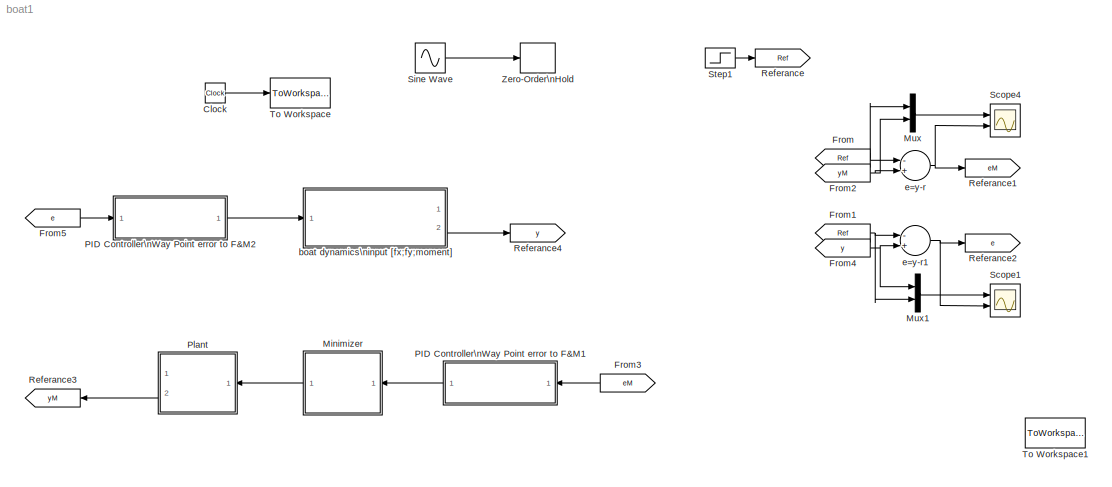
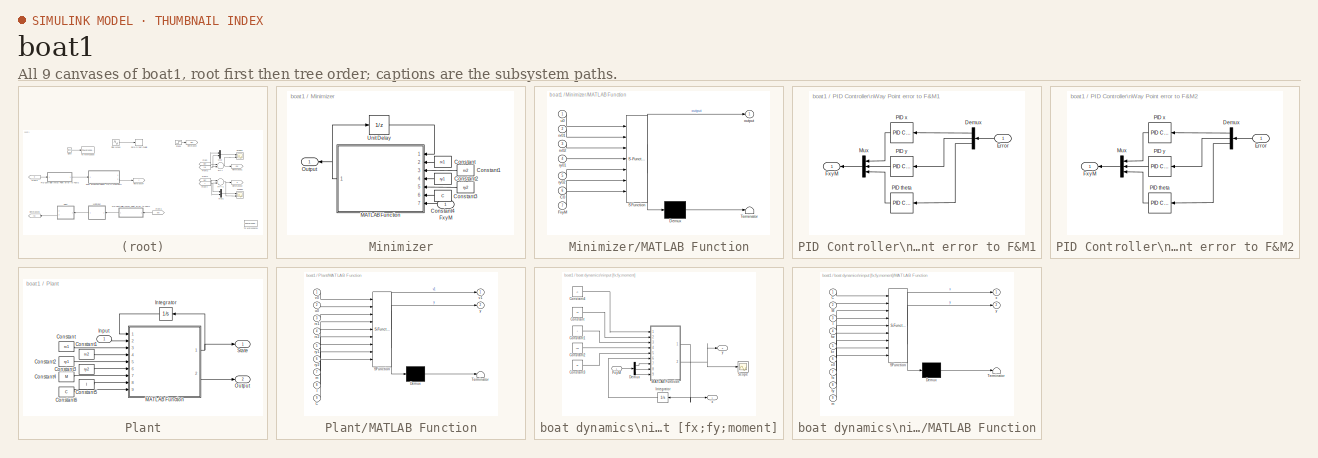
[diagram: thumbnail index - all 9 canvases of the model, root first then tree order]
MODEL boat1
KIND model
BLOCK [Clock] Clock
  SID = 9
BLOCK [From] From
  GotoTag = Ref
  SID = 150
BLOCK [From] From1
  GotoTag = Ref
  SID = 153
BLOCK [From] From2
  GotoTag = yM
  SID = 157
BLOCK [From] From3
  GotoTag = eM
  SID = 158
BLOCK [From] From4
  GotoTag = y
  SID = 161
BLOCK [From] From5
  GotoTag = e
  SID = 179
BLOCK [SubSystem] Minimizer
  FunctionWithSeparateData = off
  MaskCallbackString = ||||
  MaskEnableString = on,on,on,on,on
  MaskHideContents = off
  MaskIconFrame = on
  MaskIconOpaque = on
  MaskIconRotate = none
  MaskIconUnits = autoscale
  MaskPortRotate = default
  MaskPromptString = rx1|rx2|ry1|ry2|Performance Gain
  MaskStyleString = edit,edit,edit,edit,edit
  MaskToolTipString = on,on,on,on,on
  MaskTunableValueString = on,on,on,on,on
  MaskValueString = rx1|rx2|ry1|ry2|K
  MaskVariables = rx1=@1;rx2=@2;ry1=@3;ry2=@4;C=@5;
  MaskVisibilityString = on,on,on,on,on
  MinAlgLoopOccurrences = off
  Opaque = off
  Ports = [1, 1]
  PropExecContextOutsideSubsystem = off
  RTWSystemCode = Auto
  RequestExecContextInheritance = off
  SID = 137
BLOCK [Constant] Minimizer/Constant
  SID = 139
  Value = rx1
BLOCK [Constant] Minimizer/Constant1
  SID = 140
  Value = rx2
BLOCK [Constant] Minimizer/Constant2
  SID = 141
  Value = ry1
BLOCK [Constant] Minimizer/Constant3
  SID = 142
  Value = ry2
BLOCK [Constant] Minimizer/Constant4
  SID = 143
  Value = C
BLOCK [Inport] Minimizer/FxyM
  IconDisplay = Port number
  SID = 138
BLOCK [SubSystem] Minimizer/MATLAB Function
  ErrorFcn = Stateflow.Translate.translate
  FunctionWithSeparateData = off
  MaskDescription = Embedded MATLAB block
  MaskDisplay = bgColor = Simulink.Root.ColorString2Rgb(get_param(gcbh, 'BackgroundColor')); image(imread('private/eml_membrane_16.png','png','BackgroundColor',bgColor(1:3)),'center'); disp([10 10 'Minimizer']);
  MaskHideContents = off
  MaskIconFrame = on
  MaskIconOpaque = off
  MaskIconRotate = none
  MaskIconUnits = normalized
  MaskPortRotate = default
  MaskSelfModifiable = on
  MaskType = Stateflow
  MinAlgLoopOccurrences = off
  Opaque = off
  PermitHierarchicalResolution = ExplicitOnly
  Ports = [7, 1]
  PropExecContextOutsideSubsystem = off
  RTWSystemCode = Auto
  RequestExecContextInheritance = off
  SFBlockType = MATLAB Function
  SID = 144
  TreatAsAtomicUnit = on
BLOCK [Demux] Minimizer/MATLAB Function/ Demux 
  Outputs = 1
  Ports = [1, 1]
  SID = 144::20
BLOCK [S-Function] Minimizer/MATLAB Function/ SFunction 
  EnableBusSupport = on
  FunctionName = sf_sfun
  PortCounts = [7 2]
  Ports = [7, 2]
  SID = 144::19
  Tag = Stateflow S-Function boat1 3
BLOCK [Terminator] Minimizer/MATLAB Function/ Terminator 
  SID = 144::22
BLOCK [Inport] Minimizer/MATLAB Function/C0
  IconDisplay = Port number
  Port = 6
  SID = 144::27
BLOCK [Inport] Minimizer/MATLAB Function/FxyM
  IconDisplay = Port number
  Port = 7
  SID = 144::28
BLOCK [Outport] Minimizer/MATLAB Function/output
  IconDisplay = Port number
  SID = 144::5
BLOCK [Inport] Minimizer/MATLAB Function/rx01
  IconDisplay = Port number
  Port = 2
  SID = 144::23
BLOCK [Inport] Minimizer/MATLAB Function/rx02
  IconDisplay = Port number
  Port = 3
  SID = 144::24
BLOCK [Inport] Minimizer/MATLAB Function/ry01
  IconDisplay = Port number
  Port = 4
  SID = 144::25
BLOCK [Inport] Minimizer/MATLAB Function/ry02
  IconDisplay = Port number
  Port = 5
  SID = 144::26
BLOCK [Inport] Minimizer/MATLAB Function/u0
  IconDisplay = Port number
  SID = 144::1
BLOCK [Outport] Minimizer/Output
  IconDisplay = Port number
  SID = 146
BLOCK [UnitDelay] Minimizer/Unit Delay
  InputProcessing = Elements as channels (sample based)
  SID = 145
  SampleTime = -1
  X0 = [0 0 0 0]
BLOCK [Mux] Mux
  DisplayOption = bar
  Inputs = 2
  Ports = [2, 1]
  SID = 162
BLOCK [Mux] Mux1
  DisplayOption = bar
  Inputs = 2
  Ports = [2, 1]
  SID = 164
BLOCK [SubSystem] PID Controller\nWay Point error to F&M1
  FunctionWithSeparateData = off
  MaskHideContents = off
  MinAlgLoopOccurrences = off
  Opaque = off
  Ports = [1, 1]
  PropExecContextOutsideSubsystem = off
  RTWSystemCode = Auto
  RequestExecContextInheritance = off
  SID = 129
BLOCK [Demux] PID Controller\nWay Point error to F&M1/Demux
  DisplayOption = bar
  Outputs = 3
  Ports = [1, 3]
  SID = 131
BLOCK [Inport] PID Controller\nWay Point error to F&M1/Error
  IconDisplay = Port number
  SID = 130
BLOCK [Outport] PID Controller\nWay Point error to F&M1/FxyM
  IconDisplay = Port number
  SID = 136
BLOCK [Mux] PID Controller\nWay Point error to F&M1/Mux
  DisplayOption = bar
  Inputs = 3
  Ports = [3, 1]
  SID = 132
BLOCK [Reference] PID Controller\nWay Point error to F&M1/PID theta  REF=simulink/Continuous/PID Controller
  AntiWindupMode = none
  Controller = PID
  D = 5.47077070641916
  DOutDataTypeStr = Inherit: Inherit via internal rule
  DOutMax = []
  DOutMin = []
  DParamDataTypeStr = Inherit: Inherit via internal rule
  DParamMax = []
  DParamMin = []
  ExternalReset = none
  FilterContinuousStateAttributes = ''
  FilterMethod = Forward Euler
  FilterOutDataTypeStr = Inherit: Inherit via internal rule
  FilterOutMax = []
  FilterOutMin = []
  FilterRTWStateStorageClass = Auto
  FilterStateMustResolveToSignalObject = off
  Form = Parallel
  I = -178.448916818041
  IOutDataTypeStr = Inherit: Inherit via internal rule
  IOutMax = []
  IOutMin = []
  IParamDataTypeStr = Inherit: Inherit via internal rule
  IParamMax = []
  IParamMin = []
  IgnoreLimit = off
  InitialConditionForFilter = 0
  InitialConditionForIntegrator = 0
  InitialConditionSource = internal
  IntegratorContinuousStateAttributes = ''
  IntegratorMethod = Forward Euler
  IntegratorOutDataTypeStr = Inherit: Inherit via internal rule
  IntegratorOutMax = []
  IntegratorOutMin = []
  IntegratorRTWStateStorageClass = Auto
  IntegratorStateMustResolveToSignalObject = off
  Kb = 1
  KbOutDataTypeStr = Inherit: Inherit via internal rule
  KbOutMax = []
  KbOutMin = []
  KbParamDataTypeStr = Inherit: Inherit via internal rule
  KbParamMax = []
  KbParamMin = []
  Kt = 1
  KtOutDataTypeStr = Inherit: Inherit via internal rule
  KtOutMax = []
  KtOutMin = []
  KtParamDataTypeStr = Inherit: Inherit via internal rule
  KtParamMax = []
  KtParamMin = []
  LimitOutput = off
  LinearizeAsGain = off
  LockScale = off
  LowerSaturationLimit = -inf
  N = 9.64052643054454
  NOutDataTypeStr = Inherit: Inherit via internal rule
  NOutMax = []
  NOutMin = []
  NParamDataTypeStr = Inherit: Inherit via internal rule
  NParamMax = []
  NParamMin = []
  P = -52.7411095906827
  POutDataTypeStr = Inherit: Inherit via internal rule
  POutMax = []
  POutMin = []
  PParamDataTypeStr = Inherit: Inherit via internal rule
  PParamMax = []
  PParamMin = []
  Ports = [1, 1]
  RndMeth = Floor
  SID = 133
  SampleTime = 1
  SaturateOnIntegerOverflow = off
  SaturationOutDataTypeStr = Inherit: Same as input
  SaturationOutMax = []
  SaturationOutMin = []
  SourceBlock = simulink/Continuous/PID Controller
  SourceType = PID 1dof
  SumAccumDataTypeStr = Inherit: Inherit via internal rule
  SumDAccumDataTypeStr = Inherit: Inherit via internal rule
  SumDOutDataTypeStr = Inherit: Inherit via internal rule
  SumDOutMax = []
  SumDOutMin = []
  SumI1AccumDataTypeStr = Inherit: Inherit via internal rule
  SumI1OutDataTypeStr = Inherit: Inherit via internal rule
  SumI1OutMax = []
  SumI1OutMin = []
  SumI2AccumDataTypeStr = Inherit: Inherit via internal rule
  SumI2OutDataTypeStr = Inherit: Inherit via internal rule
  SumI2OutMax = []
  SumI2OutMin = []
  SumI3AccumDataTypeStr = Inherit: Inherit via internal rule
  SumI3OutDataTypeStr = Inherit: Inherit via internal rule
  SumI3OutMax = []
  SumI3OutMin = []
  SumOutDataTypeStr = Inherit: Inherit via internal rule
  SumOutMax = []
  SumOutMin = []
  TimeDomain = Continuous-time
  TrackingMode = off
  UpperSaturationLimit = inf
  ZeroCross = on
BLOCK [Reference] PID Controller\nWay Point error to F&M1/PID x  REF=simulink/Continuous/PID Controller
  AntiWindupMode = none
  Controller = PID
  D = 2.73538535320958
  DOutDataTypeStr = Inherit: Inherit via internal rule
  DOutMax = []
  DOutMin = []
  DParamDataTypeStr = Inherit: Inherit via internal rule
  DParamMax = []
  DParamMin = []
  ExternalReset = none
  FilterContinuousStateAttributes = ''
  FilterMethod = Forward Euler
  FilterOutDataTypeStr = Inherit: Inherit via internal rule
  FilterOutMax = []
  FilterOutMin = []
  FilterRTWStateStorageClass = Auto
  FilterStateMustResolveToSignalObject = off
  Form = Parallel
  I = -356.897833636081
  IOutDataTypeStr = Inherit: Inherit via internal rule
  IOutMax = []
  IOutMin = []
  IParamDataTypeStr = Inherit: Inherit via internal rule
  IParamMax = []
  IParamMin = []
  IgnoreLimit = off
  InitialConditionForFilter = 0
  InitialConditionForIntegrator = 0
  InitialConditionSource = internal
  IntegratorContinuousStateAttributes = ''
  IntegratorMethod = Forward Euler
  IntegratorOutDataTypeStr = Inherit: Inherit via internal rule
  IntegratorOutMax = []
  IntegratorOutMin = []
  IntegratorRTWStateStorageClass = Auto
  IntegratorStateMustResolveToSignalObject = off
  Kb = 1
  KbOutDataTypeStr = Inherit: Inherit via internal rule
  KbOutMax = []
  KbOutMin = []
  KbParamDataTypeStr = Inherit: Inherit via internal rule
  KbParamMax = []
  KbParamMin = []
  Kt = 1
  KtOutDataTypeStr = Inherit: Inherit via internal rule
  KtOutMax = []
  KtOutMin = []
  KtParamDataTypeStr = Inherit: Inherit via internal rule
  KtParamMax = []
  KtParamMin = []
  LimitOutput = off
  LinearizeAsGain = off
  LockScale = off
  LowerSaturationLimit = -inf
  N = 19.2810528610891
  NOutDataTypeStr = Inherit: Inherit via internal rule
  NOutMax = []
  NOutMin = []
  NParamDataTypeStr = Inherit: Inherit via internal rule
  NParamMax = []
  NParamMin = []
  P = -52.7411095906827
  POutDataTypeStr = Inherit: Inherit via internal rule
  POutMax = []
  POutMin = []
  PParamDataTypeStr = Inherit: Inherit via internal rule
  PParamMax = []
  PParamMin = []
  Ports = [1, 1]
  RndMeth = Floor
  SID = 134
  SampleTime = 1
  SaturateOnIntegerOverflow = off
  SaturationOutDataTypeStr = Inherit: Same as input
  SaturationOutMax = []
  SaturationOutMin = []
  SourceBlock = simulink/Continuous/PID Controller
  SourceType = PID 1dof
  SumAccumDataTypeStr = Inherit: Inherit via internal rule
  SumDAccumDataTypeStr = Inherit: Inherit via internal rule
  SumDOutDataTypeStr = Inherit: Inherit via internal rule
  SumDOutMax = []
  SumDOutMin = []
  SumI1AccumDataTypeStr = Inherit: Inherit via internal rule
  SumI1OutDataTypeStr = Inherit: Inherit via internal rule
  SumI1OutMax = []
  SumI1OutMin = []
  SumI2AccumDataTypeStr = Inherit: Inherit via internal rule
  SumI2OutDataTypeStr = Inherit: Inherit via internal rule
  SumI2OutMax = []
  SumI2OutMin = []
  SumI3AccumDataTypeStr = Inherit: Inherit via internal rule
  SumI3OutDataTypeStr = Inherit: Inherit via internal rule
  SumI3OutMax = []
  SumI3OutMin = []
  SumOutDataTypeStr = Inherit: Inherit via internal rule
  SumOutMax = []
  SumOutMin = []
  TimeDomain = Continuous-time
  TrackingMode = off
  UpperSaturationLimit = inf
  ZeroCross = on
BLOCK [Reference] PID Controller\nWay Point error to F&M1/PID y  REF=simulink/Continuous/PID Controller
  AntiWindupMode = none
  Controller = PID
  D = 2.73538535320958
  DOutDataTypeStr = Inherit: Inherit via internal rule
  DOutMax = []
  DOutMin = []
  DParamDataTypeStr = Inherit: Inherit via internal rule
  DParamMax = []
  DParamMin = []
  ExternalReset = none
  FilterContinuousStateAttributes = ''
  FilterMethod = Forward Euler
  FilterOutDataTypeStr = Inherit: Inherit via internal rule
  FilterOutMax = []
  FilterOutMin = []
  FilterRTWStateStorageClass = Auto
  FilterStateMustResolveToSignalObject = off
  Form = Parallel
  I = -356.897833636081
  IOutDataTypeStr = Inherit: Inherit via internal rule
  IOutMax = []
  IOutMin = []
  IParamDataTypeStr = Inherit: Inherit via internal rule
  IParamMax = []
  IParamMin = []
  IgnoreLimit = off
  InitialConditionForFilter = 0
  InitialConditionForIntegrator = 0
  InitialConditionSource = internal
  IntegratorContinuousStateAttributes = ''
  IntegratorMethod = Forward Euler
  IntegratorOutDataTypeStr = Inherit: Inherit via internal rule
  IntegratorOutMax = []
  IntegratorOutMin = []
  IntegratorRTWStateStorageClass = Auto
  IntegratorStateMustResolveToSignalObject = off
  Kb = 1
  KbOutDataTypeStr = Inherit: Inherit via internal rule
  KbOutMax = []
  KbOutMin = []
  KbParamDataTypeStr = Inherit: Inherit via internal rule
  KbParamMax = []
  KbParamMin = []
  Kt = 1
  KtOutDataTypeStr = Inherit: Inherit via internal rule
  KtOutMax = []
  KtOutMin = []
  KtParamDataTypeStr = Inherit: Inherit via internal rule
  KtParamMax = []
  KtParamMin = []
  LimitOutput = off
  LinearizeAsGain = off
  LockScale = off
  LowerSaturationLimit = -inf
  N = 19.2810528610891
  NOutDataTypeStr = Inherit: Inherit via internal rule
  NOutMax = []
  NOutMin = []
  NParamDataTypeStr = Inherit: Inherit via internal rule
  NParamMax = []
  NParamMin = []
  P = -52.7411095906827
  POutDataTypeStr = Inherit: Inherit via internal rule
  POutMax = []
  POutMin = []
  PParamDataTypeStr = Inherit: Inherit via internal rule
  PParamMax = []
  PParamMin = []
  Ports = [1, 1]
  RndMeth = Floor
  SID = 135
  SampleTime = 1
  SaturateOnIntegerOverflow = off
  SaturationOutDataTypeStr = Inherit: Same as input
  SaturationOutMax = []
  SaturationOutMin = []
  SourceBlock = simulink/Continuous/PID Controller
  SourceType = PID 1dof
  SumAccumDataTypeStr = Inherit: Inherit via internal rule
  SumDAccumDataTypeStr = Inherit: Inherit via internal rule
  SumDOutDataTypeStr = Inherit: Inherit via internal rule
  SumDOutMax = []
  SumDOutMin = []
  SumI1AccumDataTypeStr = Inherit: Inherit via internal rule
  SumI1OutDataTypeStr = Inherit: Inherit via internal rule
  SumI1OutMax = []
  SumI1OutMin = []
  SumI2AccumDataTypeStr = Inherit: Inherit via internal rule
  SumI2OutDataTypeStr = Inherit: Inherit via internal rule
  SumI2OutMax = []
  SumI2OutMin = []
  SumI3AccumDataTypeStr = Inherit: Inherit via internal rule
  SumI3OutDataTypeStr = Inherit: Inherit via internal rule
  SumI3OutMax = []
  SumI3OutMin = []
  SumOutDataTypeStr = Inherit: Inherit via internal rule
  SumOutMax = []
  SumOutMin = []
  TimeDomain = Continuous-time
  TrackingMode = off
  UpperSaturationLimit = inf
  ZeroCross = on
BLOCK [SubSystem] PID Controller\nWay Point error to F&M2
  FunctionWithSeparateData = off
  MaskHideContents = off
  MinAlgLoopOccurrences = off
  Opaque = off
  Ports = [1, 1]
  PropExecContextOutsideSubsystem = off
  RTWSystemCode = Auto
  RequestExecContextInheritance = off
  SID = 180
BLOCK [Demux] PID Controller\nWay Point error to F&M2/Demux
  DisplayOption = bar
  Outputs = 3
  Ports = [1, 3]
  SID = 182
BLOCK [Inport] PID Controller\nWay Point error to F&M2/Error
  IconDisplay = Port number
  SID = 181
BLOCK [Outport] PID Controller\nWay Point error to F&M2/FxyM
  IconDisplay = Port number
  SID = 187
BLOCK [Mux] PID Controller\nWay Point error to F&M2/Mux
  DisplayOption = bar
  Inputs = 3
  Ports = [3, 1]
  SID = 183
BLOCK [Reference] PID Controller\nWay Point error to F&M2/PID theta  REF=simulink/Continuous/PID Controller
  AntiWindupMode = none
  Controller = PID
  D = 5.47077070641916
  DOutDataTypeStr = Inherit: Inherit via internal rule
  DOutMax = []
  DOutMin = []
  DParamDataTypeStr = Inherit: Inherit via internal rule
  DParamMax = []
  DParamMin = []
  ExternalReset = none
  FilterContinuousStateAttributes = ''
  FilterMethod = Forward Euler
  FilterOutDataTypeStr = Inherit: Inherit via internal rule
  FilterOutMax = []
  FilterOutMin = []
  FilterRTWStateStorageClass = Auto
  FilterStateMustResolveToSignalObject = off
  Form = Parallel
  I = -178.448916818041
  IOutDataTypeStr = Inherit: Inherit via internal rule
  IOutMax = []
  IOutMin = []
  IParamDataTypeStr = Inherit: Inherit via internal rule
  IParamMax = []
  IParamMin = []
  IgnoreLimit = off
  InitialConditionForFilter = 0
  InitialConditionForIntegrator = 0
  InitialConditionSource = internal
  IntegratorContinuousStateAttributes = ''
  IntegratorMethod = Forward Euler
  IntegratorOutDataTypeStr = Inherit: Inherit via internal rule
  IntegratorOutMax = []
  IntegratorOutMin = []
  IntegratorRTWStateStorageClass = Auto
  IntegratorStateMustResolveToSignalObject = off
  Kb = 1
  KbOutDataTypeStr = Inherit: Inherit via internal rule
  KbOutMax = []
  KbOutMin = []
  KbParamDataTypeStr = Inherit: Inherit via internal rule
  KbParamMax = []
  KbParamMin = []
  Kt = 1
  KtOutDataTypeStr = Inherit: Inherit via internal rule
  KtOutMax = []
  KtOutMin = []
  KtParamDataTypeStr = Inherit: Inherit via internal rule
  KtParamMax = []
  KtParamMin = []
  LimitOutput = off
  LinearizeAsGain = off
  LockScale = off
  LowerSaturationLimit = -inf
  N = 9.64052643054454
  NOutDataTypeStr = Inherit: Inherit via internal rule
  NOutMax = []
  NOutMin = []
  NParamDataTypeStr = Inherit: Inherit via internal rule
  NParamMax = []
  NParamMin = []
  P = -52.7411095906827
  POutDataTypeStr = Inherit: Inherit via internal rule
  POutMax = []
  POutMin = []
  PParamDataTypeStr = Inherit: Inherit via internal rule
  PParamMax = []
  PParamMin = []
  Ports = [1, 1]
  RndMeth = Floor
  SID = 184
  SampleTime = 1
  SaturateOnIntegerOverflow = off
  SaturationOutDataTypeStr = Inherit: Same as input
  SaturationOutMax = []
  SaturationOutMin = []
  SourceBlock = simulink/Continuous/PID Controller
  SourceType = PID 1dof
  SumAccumDataTypeStr = Inherit: Inherit via internal rule
  SumDAccumDataTypeStr = Inherit: Inherit via internal rule
  SumDOutDataTypeStr = Inherit: Inherit via internal rule
  SumDOutMax = []
  SumDOutMin = []
  SumI1AccumDataTypeStr = Inherit: Inherit via internal rule
  SumI1OutDataTypeStr = Inherit: Inherit via internal rule
  SumI1OutMax = []
  SumI1OutMin = []
  SumI2AccumDataTypeStr = Inherit: Inherit via internal rule
  SumI2OutDataTypeStr = Inherit: Inherit via internal rule
  SumI2OutMax = []
  SumI2OutMin = []
  SumI3AccumDataTypeStr = Inherit: Inherit via internal rule
  SumI3OutDataTypeStr = Inherit: Inherit via internal rule
  SumI3OutMax = []
  SumI3OutMin = []
  SumOutDataTypeStr = Inherit: Inherit via internal rule
  SumOutMax = []
  SumOutMin = []
  TimeDomain = Continuous-time
  TrackingMode = off
  UpperSaturationLimit = inf
  ZeroCross = on
BLOCK [Reference] PID Controller\nWay Point error to F&M2/PID x  REF=simulink/Continuous/PID Controller
  AntiWindupMode = none
  Controller = PID
  D = 2.73538535320958
  DOutDataTypeStr = Inherit: Inherit via internal rule
  DOutMax = []
  DOutMin = []
  DParamDataTypeStr = Inherit: Inherit via internal rule
  DParamMax = []
  DParamMin = []
  ExternalReset = none
  FilterContinuousStateAttributes = ''
  FilterMethod = Forward Euler
  FilterOutDataTypeStr = Inherit: Inherit via internal rule
  FilterOutMax = []
  FilterOutMin = []
  FilterRTWStateStorageClass = Auto
  FilterStateMustResolveToSignalObject = off
  Form = Parallel
  I = -356.897833636081
  IOutDataTypeStr = Inherit: Inherit via internal rule
  IOutMax = []
  IOutMin = []
  IParamDataTypeStr = Inherit: Inherit via internal rule
  IParamMax = []
  IParamMin = []
  IgnoreLimit = off
  InitialConditionForFilter = 0
  InitialConditionForIntegrator = 0
  InitialConditionSource = internal
  IntegratorContinuousStateAttributes = ''
  IntegratorMethod = Forward Euler
  IntegratorOutDataTypeStr = Inherit: Inherit via internal rule
  IntegratorOutMax = []
  IntegratorOutMin = []
  IntegratorRTWStateStorageClass = Auto
  IntegratorStateMustResolveToSignalObject = off
  Kb = 1
  KbOutDataTypeStr = Inherit: Inherit via internal rule
  KbOutMax = []
  KbOutMin = []
  KbParamDataTypeStr = Inherit: Inherit via internal rule
  KbParamMax = []
  KbParamMin = []
  Kt = 1
  KtOutDataTypeStr = Inherit: Inherit via internal rule
  KtOutMax = []
  KtOutMin = []
  KtParamDataTypeStr = Inherit: Inherit via internal rule
  KtParamMax = []
  KtParamMin = []
  LimitOutput = off
  LinearizeAsGain = off
  LockScale = off
  LowerSaturationLimit = -inf
  N = 19.2810528610891
  NOutDataTypeStr = Inherit: Inherit via internal rule
  NOutMax = []
  NOutMin = []
  NParamDataTypeStr = Inherit: Inherit via internal rule
  NParamMax = []
  NParamMin = []
  P = -52.7411095906827
  POutDataTypeStr = Inherit: Inherit via internal rule
  POutMax = []
  POutMin = []
  PParamDataTypeStr = Inherit: Inherit via internal rule
  PParamMax = []
  PParamMin = []
  Ports = [1, 1]
  RndMeth = Floor
  SID = 185
  SampleTime = 1
  SaturateOnIntegerOverflow = off
  SaturationOutDataTypeStr = Inherit: Same as input
  SaturationOutMax = []
  SaturationOutMin = []
  SourceBlock = simulink/Continuous/PID Controller
  SourceType = PID 1dof
  SumAccumDataTypeStr = Inherit: Inherit via internal rule
  SumDAccumDataTypeStr = Inherit: Inherit via internal rule
  SumDOutDataTypeStr = Inherit: Inherit via internal rule
  SumDOutMax = []
  SumDOutMin = []
  SumI1AccumDataTypeStr = Inherit: Inherit via internal rule
  SumI1OutDataTypeStr = Inherit: Inherit via internal rule
  SumI1OutMax = []
  SumI1OutMin = []
  SumI2AccumDataTypeStr = Inherit: Inherit via internal rule
  SumI2OutDataTypeStr = Inherit: Inherit via internal rule
  SumI2OutMax = []
  SumI2OutMin = []
  SumI3AccumDataTypeStr = Inherit: Inherit via internal rule
  SumI3OutDataTypeStr = Inherit: Inherit via internal rule
  SumI3OutMax = []
  SumI3OutMin = []
  SumOutDataTypeStr = Inherit: Inherit via internal rule
  SumOutMax = []
  SumOutMin = []
  TimeDomain = Continuous-time
  TrackingMode = off
  UpperSaturationLimit = inf
  ZeroCross = on
BLOCK [Reference] PID Controller\nWay Point error to F&M2/PID y  REF=simulink/Continuous/PID Controller
  AntiWindupMode = none
  Controller = PID
  D = 2.73538535320958
  DOutDataTypeStr = Inherit: Inherit via internal rule
  DOutMax = []
  DOutMin = []
  DParamDataTypeStr = Inherit: Inherit via internal rule
  DParamMax = []
  DParamMin = []
  ExternalReset = none
  FilterContinuousStateAttributes = ''
  FilterMethod = Forward Euler
  FilterOutDataTypeStr = Inherit: Inherit via internal rule
  FilterOutMax = []
  FilterOutMin = []
  FilterRTWStateStorageClass = Auto
  FilterStateMustResolveToSignalObject = off
  Form = Parallel
  I = -356.897833636081
  IOutDataTypeStr = Inherit: Inherit via internal rule
  IOutMax = []
  IOutMin = []
  IParamDataTypeStr = Inherit: Inherit via internal rule
  IParamMax = []
  IParamMin = []
  IgnoreLimit = off
  InitialConditionForFilter = 0
  InitialConditionForIntegrator = 0
  InitialConditionSource = internal
  IntegratorContinuousStateAttributes = ''
  IntegratorMethod = Forward Euler
  IntegratorOutDataTypeStr = Inherit: Inherit via internal rule
  IntegratorOutMax = []
  IntegratorOutMin = []
  IntegratorRTWStateStorageClass = Auto
  IntegratorStateMustResolveToSignalObject = off
  Kb = 1
  KbOutDataTypeStr = Inherit: Inherit via internal rule
  KbOutMax = []
  KbOutMin = []
  KbParamDataTypeStr = Inherit: Inherit via internal rule
  KbParamMax = []
  KbParamMin = []
  Kt = 1
  KtOutDataTypeStr = Inherit: Inherit via internal rule
  KtOutMax = []
  KtOutMin = []
  KtParamDataTypeStr = Inherit: Inherit via internal rule
  KtParamMax = []
  KtParamMin = []
  LimitOutput = off
  LinearizeAsGain = off
  LockScale = off
  LowerSaturationLimit = -inf
  N = 19.2810528610891
  NOutDataTypeStr = Inherit: Inherit via internal rule
  NOutMax = []
  NOutMin = []
  NParamDataTypeStr = Inherit: Inherit via internal rule
  NParamMax = []
  NParamMin = []
  P = -52.7411095906827
  POutDataTypeStr = Inherit: Inherit via internal rule
  POutMax = []
  POutMin = []
  PParamDataTypeStr = Inherit: Inherit via internal rule
  PParamMax = []
  PParamMin = []
  Ports = [1, 1]
  RndMeth = Floor
  SID = 186
  SampleTime = 1
  SaturateOnIntegerOverflow = off
  SaturationOutDataTypeStr = Inherit: Same as input
  SaturationOutMax = []
  SaturationOutMin = []
  SourceBlock = simulink/Continuous/PID Controller
  SourceType = PID 1dof
  SumAccumDataTypeStr = Inherit: Inherit via internal rule
  SumDAccumDataTypeStr = Inherit: Inherit via internal rule
  SumDOutDataTypeStr = Inherit: Inherit via internal rule
  SumDOutMax = []
  SumDOutMin = []
  SumI1AccumDataTypeStr = Inherit: Inherit via internal rule
  SumI1OutDataTypeStr = Inherit: Inherit via internal rule
  SumI1OutMax = []
  SumI1OutMin = []
  SumI2AccumDataTypeStr = Inherit: Inherit via internal rule
  SumI2OutDataTypeStr = Inherit: Inherit via internal rule
  SumI2OutMax = []
  SumI2OutMin = []
  SumI3AccumDataTypeStr = Inherit: Inherit via internal rule
  SumI3OutDataTypeStr = Inherit: Inherit via internal rule
  SumI3OutMax = []
  SumI3OutMin = []
  SumOutDataTypeStr = Inherit: Inherit via internal rule
  SumOutMax = []
  SumOutMin = []
  TimeDomain = Continuous-time
  TrackingMode = off
  UpperSaturationLimit = inf
  ZeroCross = on
BLOCK [SubSystem] Plant
  FunctionWithSeparateData = off
  MaskCallbackString = ||||||
  MaskEnableString = on,on,on,on,on,on,on
  MaskHideContents = off
  MaskIconFrame = on
  MaskIconOpaque = on
  MaskIconRotate = none
  MaskIconUnits = autoscale
  MaskPortRotate = default
  MaskPromptString = rx1|rx2|ry1|ry2|M|I|C
  MaskStyleString = promote(Constant/Value),edit,edit,edit,edit,edit,edit
  MaskToolTipString = on,on,on,on,on,on,on
  MaskTunableValueString = on,on,on,on,on,on,on
  MaskValueString = rx1|rx2|ry1|ry2|M|I|C
  MaskVariables = rx1=@1;rx2=@2;ry1=@3;ry2=@4;M=@5;I=@6;C=@7;
  MaskVisibilityString = on,on,on,on,on,on,on
  MinAlgLoopOccurrences = off
  Opaque = off
  Ports = [1, 2]
  PropExecContextOutsideSubsystem = off
  RTWSystemCode = Auto
  RequestExecContextInheritance = off
  SID = 116
BLOCK [Constant] Plant/Constant
  SID = 118
  Value = rx1
BLOCK [Constant] Plant/Constant1
  SID = 119
  Value = rx2
BLOCK [Constant] Plant/Constant2
  SID = 120
  Value = ry1
BLOCK [Constant] Plant/Constant3
  SID = 121
  Value = ry2
BLOCK [Constant] Plant/Constant4
  SID = 122
  Value = M
BLOCK [Constant] Plant/Constant5
  SID = 123
  Value = I
BLOCK [Constant] Plant/Constant6
  SID = 124
  Value = C
BLOCK [Inport] Plant/Input
  IconDisplay = Port number
  SID = 117
BLOCK [Integrator] Plant/Integrator
  InitialCondition = [0 0 0 0 0 0]
  Ports = [1, 1]
  SID = 125
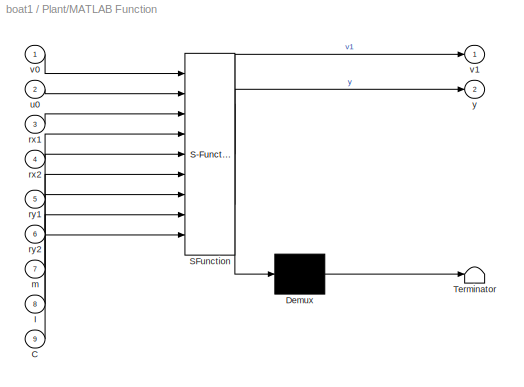
BLOCK [SubSystem] Plant/MATLAB Function
  ErrorFcn = Stateflow.Translate.translate
  FunctionWithSeparateData = off
  MaskDescription = Embedded MATLAB block
  MaskDisplay = bgColor = Simulink.Root.ColorString2Rgb(get_param(gcbh, 'BackgroundColor')); image(imread('private/eml_membrane_16.png','png','BackgroundColor',bgColor(1:3)),'center'); disp([10 10 'boatDynamics']);
  MaskHideContents = off
  MaskIconFrame = on
  MaskIconOpaque = off
  MaskIconRotate = none
  MaskIconUnits = normalized
  MaskPortRotate = default
  MaskSelfModifiable = on
  MaskType = Stateflow
  MinAlgLoopOccurrences = off
  Opaque = off
  PermitHierarchicalResolution = ExplicitOnly
  Ports = [9, 2]
  PropExecContextOutsideSubsystem = off
  RTWSystemCode = Auto
  RequestExecContextInheritance = off
  SFBlockType = MATLAB Function
  SID = 126
  TreatAsAtomicUnit = on
BLOCK [Demux] Plant/MATLAB Function/ Demux 
  Outputs = 1
  Ports = [1, 1]
  SID = 126::20
BLOCK [S-Function] Plant/MATLAB Function/ SFunction 
  EnableBusSupport = on
  FunctionName = sf_sfun
  PortCounts = [9 3]
  Ports = [9, 3]
  SID = 126::19
  Tag = Stateflow S-Function boat1 1
BLOCK [Terminator] Plant/MATLAB Function/ Terminator 
  SID = 126::22
BLOCK [Inport] Plant/MATLAB Function/C
  IconDisplay = Port number
  Port = 9
  SID = 126::32
BLOCK [Inport] Plant/MATLAB Function/I
  IconDisplay = Port number
  Port = 8
  SID = 126::30
BLOCK [Inport] Plant/MATLAB Function/m
  IconDisplay = Port number
  Port = 7
  SID = 126::29
BLOCK [Inport] Plant/MATLAB Function/rx1
  IconDisplay = Port number
  Port = 3
  SID = 126::25
BLOCK [Inport] Plant/MATLAB Function/rx2
  IconDisplay = Port number
  Port = 4
  SID = 126::26
BLOCK [Inport] Plant/MATLAB Function/ry1
  IconDisplay = Port number
  Port = 5
  SID = 126::27
BLOCK [Inport] Plant/MATLAB Function/ry2
  IconDisplay = Port number
  Port = 6
  SID = 126::28
BLOCK [Inport] Plant/MATLAB Function/u0
  IconDisplay = Port number
  Port = 2
  SID = 126::24
BLOCK [Inport] Plant/MATLAB Function/v0
  IconDisplay = Port number
  SID = 126::1
BLOCK [Outport] Plant/MATLAB Function/v1
  IconDisplay = Port number
  SID = 126::5
BLOCK [Outport] Plant/MATLAB Function/y
  IconDisplay = Port number
  Port = 2
  SID = 126::31
BLOCK [Outport] Plant/Output
  IconDisplay = Port number
  Port = 2
  SID = 128
BLOCK [Outport] Plant/State
  IconDisplay = Port number
  SID = 127
BLOCK [Goto] Referance
  GotoTag = Ref
  SID = 149
BLOCK [Goto] Referance1
  GotoTag = eM
  SID = 152
BLOCK [Goto] Referance2
  GotoTag = e
  SID = 154
BLOCK [Goto] Referance3
  GotoTag = yM
  SID = 156
BLOCK [Goto] Referance4
  GotoTag = y
  SID = 178
BLOCK [Scope] Scope1
  DataFormat = StructureWithTime
  Floating = off
  LimitDataPoints = off
  NumInputPorts = 2
  Ports = [2]
  SID = 163
  SampleTime = 0
  SaveName = ScopeData1
  ShowLegends = off
  YMax = 5~5
  YMin = -5~-5
  ZoomMode = yonly
BLOCK [Scope] Scope4
  DataFormat = StructureWithTime
  Floating = off
  LimitDataPoints = off
  NumInputPorts = 2
  Ports = [2]
  SID = 159
  SampleTime = 0
  ShowLegends = off
  YMax = 5~5
  YMin = -5~-5
  ZoomMode = xonly
BLOCK [Sin] Sine Wave
  Amplitude = [2;4;700]
  Frequency = [2;4;.1]
  Ports = [0, 1]
  SID = 65
  SampleTime = 0
BLOCK [Step] Step1
  After = [5;2;45]
  Before = [0;0;0]
  SID = 147
  SampleTime = 0
BLOCK [ToWorkspace] To Workspace
  MaxDataPoints = inf
  Ports = [1]
  SID = 56
  SampleTime = -1
  SaveFormat = Structure
  VariableName = time
BLOCK [ToWorkspace] To Workspace1
  MaxDataPoints = inf
  Ports = [1]
  SID = 57
  SampleTime = -1
  SaveFormat = Structure
  VariableName = Output
BLOCK [ZeroOrderHold] Zero-Order\nHold
  SID = 63
  SampleTime = 3
BLOCK [SubSystem] boat dynamics\ninput [fx;fy;moment]
  FunctionWithSeparateData = off
  MaskCallbackString = ||||
  MaskEnableString = on,on,on,on,on
  MaskHideContents = off
  MaskIconFrame = on
  MaskIconOpaque = on
  MaskIconRotate = none
  MaskIconUnits = autoscale
  MaskPortRotate = default
  MaskPromptString = Mass|Inert|Water Friction|Rotational water Friction|Output Matrix
  MaskStyleString = edit,edit,edit,edit,edit
  MaskToolTipString = on,on,on,on,on
  MaskTunableValueString = on,on,on,on,on
  MaskValueString = M|I|fw|kr|C
  MaskVariables = M=@1;I=@2;fw=@3;kr=@4;C=@5;
  MaskVisibilityString = on,on,on,on,on
  MinAlgLoopOccurrences = off
  Opaque = off
  Ports = [1, 2]
  PropExecContextOutsideSubsystem = off
  RTWSystemCode = Auto
  RequestExecContextInheritance = off
  SID = 165
BLOCK [Constant] boat dynamics\ninput [fx;fy;moment]/Constant
  SID = 167
  Value = M
BLOCK [Constant] boat dynamics\ninput [fx;fy;moment]/Constant1
  SID = 168
  Value = I
BLOCK [Constant] boat dynamics\ninput [fx;fy;moment]/Constant2
  SID = 169
  Value = fw
BLOCK [Constant] boat dynamics\ninput [fx;fy;moment]/Constant3
  SID = 170
  Value = kr
BLOCK [Constant] boat dynamics\ninput [fx;fy;moment]/Constant4
  SID = 171
  Value = C
BLOCK [Demux] boat dynamics\ninput [fx;fy;moment]/Demux
  DisplayOption = bar
  Outputs = 3
  Ports = [1, 3]
  SID = 172
BLOCK [Inport] boat dynamics\ninput [fx;fy;moment]/FxyM
  IconDisplay = Port number
  SID = 166
BLOCK [Integrator] boat dynamics\ninput [fx;fy;moment]/Integrator
  InitialCondition = [0 0 0 0 0 0]
  Ports = [1, 1]
  SID = 173
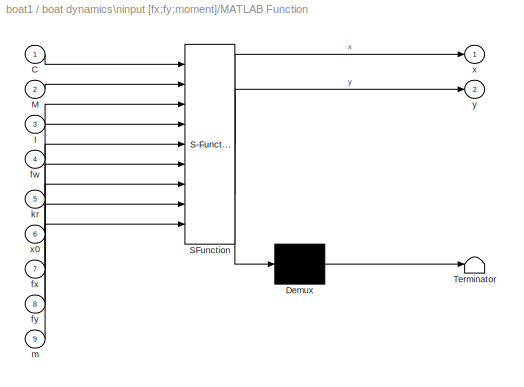
BLOCK [SubSystem] boat dynamics\ninput [fx;fy;moment]/MATLAB Function
  ErrorFcn = Stateflow.Translate.translate
  FunctionWithSeparateData = off
  MaskDescription = Embedded MATLAB block
  MaskDisplay = bgColor = Simulink.Root.ColorString2Rgb(get_param(gcbh, 'BackgroundColor')); image(imread('private/eml_membrane_16.png','png','BackgroundColor',bgColor(1:3)),'center'); disp([10 10 'systemstep']);
  MaskHideContents = off
  MaskIconFrame = on
  MaskIconOpaque = off
  MaskIconRotate = none
  MaskIconUnits = normalized
  MaskPortRotate = default
  MaskSelfModifiable = on
  MaskType = Stateflow
  MinAlgLoopOccurrences = off
  Opaque = off
  PermitHierarchicalResolution = ExplicitOnly
  Ports = [9, 2]
  PropExecContextOutsideSubsystem = off
  RTWSystemCode = Auto
  RequestExecContextInheritance = off
  SFBlockType = MATLAB Function
  SID = 174
  TreatAsAtomicUnit = on
BLOCK [Demux] boat dynamics\ninput [fx;fy;moment]/MATLAB Function/ Demux 
  Outputs = 1
  Ports = [1, 1]
  SID = 174::28
BLOCK [S-Function] boat dynamics\ninput [fx;fy;moment]/MATLAB Function/ SFunction 
  EnableBusSupport = on
  FunctionName = sf_sfun
  PortCounts = [9 3]
  Ports = [9, 3]
  SID = 174::27
  Tag = Stateflow S-Function boat1 2
BLOCK [Terminator] boat dynamics\ninput [fx;fy;moment]/MATLAB Function/ Terminator 
  SID = 174::30
BLOCK [Inport] boat dynamics\ninput [fx;fy;moment]/MATLAB Function/C
  IconDisplay = Port number
  SID = 174::24
BLOCK [Inport] boat dynamics\ninput [fx;fy;moment]/MATLAB Function/I
  IconDisplay = Port number
  Port = 3
  SID = 174::20
BLOCK [Inport] boat dynamics\ninput [fx;fy;moment]/MATLAB Function/M
  IconDisplay = Port number
  Port = 2
  SID = 174::19
BLOCK [Inport] boat dynamics\ninput [fx;fy;moment]/MATLAB Function/fw
  IconDisplay = Port number
  Port = 4
  SID = 174::21
BLOCK [Inport] boat dynamics\ninput [fx;fy;moment]/MATLAB Function/fx
  IconDisplay = Port number
  Port = 7
  SID = 174::1
BLOCK [Inport] boat dynamics\ninput [fx;fy;moment]/MATLAB Function/fy
  IconDisplay = Port number
  Port = 8
  SID = 174::25
BLOCK [Inport] boat dynamics\ninput [fx;fy;moment]/MATLAB Function/kr
  IconDisplay = Port number
  Port = 5
  SID = 174::22
BLOCK [Inport] boat dynamics\ninput [fx;fy;moment]/MATLAB Function/m
  IconDisplay = Port number
  Port = 9
  SID = 174::26
BLOCK [Outport] boat dynamics\ninput [fx;fy;moment]/MATLAB Function/x
  IconDisplay = Port number
  SID = 174::23
BLOCK [Inport] boat dynamics\ninput [fx;fy;moment]/MATLAB Function/x0
  IconDisplay = Port number
  Port = 6
  SID = 174::18
BLOCK [Outport] boat dynamics\ninput [fx;fy;moment]/MATLAB Function/y
  IconDisplay = Port number
  Port = 2
  SID = 174::5
BLOCK [Scope] boat dynamics\ninput [fx;fy;moment]/Scope
  DataFormat = StructureWithTime
  Floating = off
  NumInputPorts = 1
  Ports = [1]
  SID = 175
  SampleTime = 0
  ShowLegends = off
BLOCK [Outport] boat dynamics\ninput [fx;fy;moment]/x
  IconDisplay = Port number
  SID = 176
BLOCK [Outport] boat dynamics\ninput [fx;fy;moment]/y
  IconDisplay = Port number
  Port = 2
  SID = 177
BLOCK [Sum] e=y-r
  InputSameDT = off
  Inputs = -+
  OutDataTypeStr = Inherit: Inherit via internal rule
  Ports = [2, 1]
  SID = 148
  SaturateOnIntegerOverflow = off
BLOCK [Sum] e=y-r1
  InputSameDT = off
  Inputs = -+
  OutDataTypeStr = Inherit: Inherit via internal rule
  Ports = [2, 1]
  SID = 155
  SaturateOnIntegerOverflow = off
LINE Clock:1 -> To Workspace:1
NET From1:1 -> Mux1:2, e=y-r1:1
NET From2:1 -> Mux:2, e=y-r:2
LINE From3:1 -> PID Controller\nWay Point error to F&M1:1
NET From4:1 -> Mux1:1, e=y-r1:2
LINE From5:1 -> PID Controller\nWay Point error to F&M2:1
NET From:1 -> Mux:1, e=y-r:1
LINE Minimizer/Constant1:1 -> Minimizer/MATLAB Function:3
LINE Minimizer/Constant2:1 -> Minimizer/MATLAB Function:4
LINE Minimizer/Constant3:1 -> Minimizer/MATLAB Function:5
LINE Minimizer/Constant4:1 -> Minimizer/MATLAB Function:6
LINE Minimizer/Constant:1 -> Minimizer/MATLAB Function:2
LINE Minimizer/FxyM:1 -> Minimizer/MATLAB Function:7
LINE Minimizer/MATLAB Function/ Demux :1 -> Minimizer/MATLAB Function/ Terminator :1
LINE Minimizer/MATLAB Function/ SFunction :1 -> Minimizer/MATLAB Function/ Demux :1
LINE Minimizer/MATLAB Function/ SFunction :2 -> Minimizer/MATLAB Function/output:1
LINE Minimizer/MATLAB Function/C0:1 -> Minimizer/MATLAB Function/ SFunction :6
LINE Minimizer/MATLAB Function/FxyM:1 -> Minimizer/MATLAB Function/ SFunction :7
LINE Minimizer/MATLAB Function/rx01:1 -> Minimizer/MATLAB Function/ SFunction :2
LINE Minimizer/MATLAB Function/rx02:1 -> Minimizer/MATLAB Function/ SFunction :3
LINE Minimizer/MATLAB Function/ry01:1 -> Minimizer/MATLAB Function/ SFunction :4
LINE Minimizer/MATLAB Function/ry02:1 -> Minimizer/MATLAB Function/ SFunction :5
LINE Minimizer/MATLAB Function/u0:1 -> Minimizer/MATLAB Function/ SFunction :1
NET Minimizer/MATLAB Function:1 -> Minimizer/Output:1, Minimizer/Unit Delay:1
LINE Minimizer/Unit Delay:1 -> Minimizer/MATLAB Function:1
LINE Minimizer:1 -> Plant:1
LINE Mux1:1 -> Scope1:1
LINE Mux:1 -> Scope4:1
LINE PID Controller\nWay Point error to F&M1/Demux:1 -> PID Controller\nWay Point error to F&M1/PID x:1
LINE PID Controller\nWay Point error to F&M1/Demux:2 -> PID Controller\nWay Point error to F&M1/PID y:1
LINE PID Controller\nWay Point error to F&M1/Demux:3 -> PID Controller\nWay Point error to F&M1/PID theta:1
LINE PID Controller\nWay Point error to F&M1/Error:1 -> PID Controller\nWay Point error to F&M1/Demux:1
LINE PID Controller\nWay Point error to F&M1/Mux:1 -> PID Controller\nWay Point error to F&M1/FxyM:1
LINE PID Controller\nWay Point error to F&M1/PID theta:1 -> PID Controller\nWay Point error to F&M1/Mux:3
LINE PID Controller\nWay Point error to F&M1/PID x:1 -> PID Controller\nWay Point error to F&M1/Mux:1
LINE PID Controller\nWay Point error to F&M1/PID y:1 -> PID Controller\nWay Point error to F&M1/Mux:2
LINE PID Controller\nWay Point error to F&M1:1 -> Minimizer:1
LINE PID Controller\nWay Point error to F&M2/Demux:1 -> PID Controller\nWay Point error to F&M2/PID x:1
LINE PID Controller\nWay Point error to F&M2/Demux:2 -> PID Controller\nWay Point error to F&M2/PID y:1
LINE PID Controller\nWay Point error to F&M2/Demux:3 -> PID Controller\nWay Point error to F&M2/PID theta:1
LINE PID Controller\nWay Point error to F&M2/Error:1 -> PID Controller\nWay Point error to F&M2/Demux:1
LINE PID Controller\nWay Point error to F&M2/Mux:1 -> PID Controller\nWay Point error to F&M2/FxyM:1
LINE PID Controller\nWay Point error to F&M2/PID theta:1 -> PID Controller\nWay Point error to F&M2/Mux:3
LINE PID Controller\nWay Point error to F&M2/PID x:1 -> PID Controller\nWay Point error to F&M2/Mux:1
LINE PID Controller\nWay Point error to F&M2/PID y:1 -> PID Controller\nWay Point error to F&M2/Mux:2
LINE PID Controller\nWay Point error to F&M2:1 -> boat dynamics\ninput [fx;fy;moment]:1
LINE Plant/Constant1:1 -> Plant/MATLAB Function:4
LINE Plant/Constant2:1 -> Plant/MATLAB Function:5
LINE Plant/Constant3:1 -> Plant/MATLAB Function:6
LINE Plant/Constant4:1 -> Plant/MATLAB Function:7
LINE Plant/Constant5:1 -> Plant/MATLAB Function:8
LINE Plant/Constant6:1 -> Plant/MATLAB Function:9
LINE Plant/Constant:1 -> Plant/MATLAB Function:3
LINE Plant/Input:1 -> Plant/MATLAB Function:2
LINE Plant/Integrator:1 -> Plant/MATLAB Function:1
LINE Plant/MATLAB Function/ Demux :1 -> Plant/MATLAB Function/ Terminator :1
LINE Plant/MATLAB Function/ SFunction :1 -> Plant/MATLAB Function/ Demux :1
LINE Plant/MATLAB Function/ SFunction :2 -> Plant/MATLAB Function/v1:1
LINE Plant/MATLAB Function/ SFunction :3 -> Plant/MATLAB Function/y:1
LINE Plant/MATLAB Function/C:1 -> Plant/MATLAB Function/ SFunction :9
LINE Plant/MATLAB Function/I:1 -> Plant/MATLAB Function/ SFunction :8
LINE Plant/MATLAB Function/m:1 -> Plant/MATLAB Function/ SFunction :7
LINE Plant/MATLAB Function/rx1:1 -> Plant/MATLAB Function/ SFunction :3
LINE Plant/MATLAB Function/rx2:1 -> Plant/MATLAB Function/ SFunction :4
LINE Plant/MATLAB Function/ry1:1 -> Plant/MATLAB Function/ SFunction :5
LINE Plant/MATLAB Function/ry2:1 -> Plant/MATLAB Function/ SFunction :6
LINE Plant/MATLAB Function/u0:1 -> Plant/MATLAB Function/ SFunction :2
LINE Plant/MATLAB Function/v0:1 -> Plant/MATLAB Function/ SFunction :1
NET Plant/MATLAB Function:1 -> Plant/Integrator:1, Plant/State:1
LINE Plant/MATLAB Function:2 -> Plant/Output:1
LINE Plant:2 -> Referance3:1
LINE Sine Wave:1 -> Zero-Order\nHold:1
LINE Step1:1 -> Referance:1
LINE boat dynamics\ninput [fx;fy;moment]/Constant1:1 -> boat dynamics\ninput [fx;fy;moment]/MATLAB Function:3
LINE boat dynamics\ninput [fx;fy;moment]/Constant2:1 -> boat dynamics\ninput [fx;fy;moment]/MATLAB Function:4
LINE boat dynamics\ninput [fx;fy;moment]/Constant3:1 -> boat dynamics\ninput [fx;fy;moment]/MATLAB Function:5
LINE boat dynamics\ninput [fx;fy;moment]/Constant4:1 -> boat dynamics\ninput [fx;fy;moment]/MATLAB Function:1
LINE boat dynamics\ninput [fx;fy;moment]/Constant:1 -> boat dynamics\ninput [fx;fy;moment]/MATLAB Function:2
LINE boat dynamics\ninput [fx;fy;moment]/Demux:1 -> boat dynamics\ninput [fx;fy;moment]/MATLAB Function:7
LINE boat dynamics\ninput [fx;fy;moment]/Demux:2 -> boat dynamics\ninput [fx;fy;moment]/MATLAB Function:8
LINE boat dynamics\ninput [fx;fy;moment]/Demux:3 -> boat dynamics\ninput [fx;fy;moment]/MATLAB Function:9
LINE boat dynamics\ninput [fx;fy;moment]/FxyM:1 -> boat dynamics\ninput [fx;fy;moment]/Demux:1
LINE boat dynamics\ninput [fx;fy;moment]/Integrator:1 -> boat dynamics\ninput [fx;fy;moment]/MATLAB Function:6
LINE boat dynamics\ninput [fx;fy;moment]/MATLAB Function/ Demux :1 -> boat dynamics\ninput [fx;fy;moment]/MATLAB Function/ Terminator :1
LINE boat dynamics\ninput [fx;fy;moment]/MATLAB Function/ SFunction :1 -> boat dynamics\ninput [fx;fy;moment]/MATLAB Function/ Demux :1
LINE boat dynamics\ninput [fx;fy;moment]/MATLAB Function/ SFunction :2 -> boat dynamics\ninput [fx;fy;moment]/MATLAB Function/x:1
LINE boat dynamics\ninput [fx;fy;moment]/MATLAB Function/ SFunction :3 -> boat dynamics\ninput [fx;fy;moment]/MATLAB Function/y:1
LINE boat dynamics\ninput [fx;fy;moment]/MATLAB Function/C:1 -> boat dynamics\ninput [fx;fy;moment]/MATLAB Function/ SFunction :1
LINE boat dynamics\ninput [fx;fy;moment]/MATLAB Function/I:1 -> boat dynamics\ninput [fx;fy;moment]/MATLAB Function/ SFunction :3
LINE boat dynamics\ninput [fx;fy;moment]/MATLAB Function/M:1 -> boat dynamics\ninput [fx;fy;moment]/MATLAB Function/ SFunction :2
LINE boat dynamics\ninput [fx;fy;moment]/MATLAB Function/fw:1 -> boat dynamics\ninput [fx;fy;moment]/MATLAB Function/ SFunction :4
LINE boat dynamics\ninput [fx;fy;moment]/MATLAB Function/fx:1 -> boat dynamics\ninput [fx;fy;moment]/MATLAB Function/ SFunction :7
LINE boat dynamics\ninput [fx;fy;moment]/MATLAB Function/fy:1 -> boat dynamics\ninput [fx;fy;moment]/MATLAB Function/ SFunction :8
LINE boat dynamics\ninput [fx;fy;moment]/MATLAB Function/kr:1 -> boat dynamics\ninput [fx;fy;moment]/MATLAB Function/ SFunction :5
LINE boat dynamics\ninput [fx;fy;moment]/MATLAB Function/m:1 -> boat dynamics\ninput [fx;fy;moment]/MATLAB Function/ SFunction :9
LINE boat dynamics\ninput [fx;fy;moment]/MATLAB Function/x0:1 -> boat dynamics\ninput [fx;fy;moment]/MATLAB Function/ SFunction :6
NET boat dynamics\ninput [fx;fy;moment]/MATLAB Function:1 -> boat dynamics\ninput [fx;fy;moment]/Integrator:1, boat dynamics\ninput [fx;fy;moment]/x:1
NET boat dynamics\ninput [fx;fy;moment]/MATLAB Function:2 -> boat dynamics\ninput [fx;fy;moment]/Scope:1, boat dynamics\ninput [fx;fy;moment]/y:1
LINE boat dynamics\ninput [fx;fy;moment]:2 -> Referance4:1
NET e=y-r1:1 -> Referance2:1, Scope1:2
NET e=y-r:1 -> Referance1:1, Scope4:2
note: NET lines group one-source signal fan-out (src -> all destinations, sorted); 1:1 wires keep LINE
CHART Plant/MATLAB Function states=1 transitions=1
  STATE_LABEL 'eML_blk_kernel()'
CHART boat dynamics\ninput [fx;fy;moment]/MATLAB Function states=1 transitions=1
  STATE_LABEL 'eML_blk_kernel()'
CHART Minimizer/MATLAB Function states=1 transitions=1
  STATE_LABEL 'eML_blk_kernel()'
